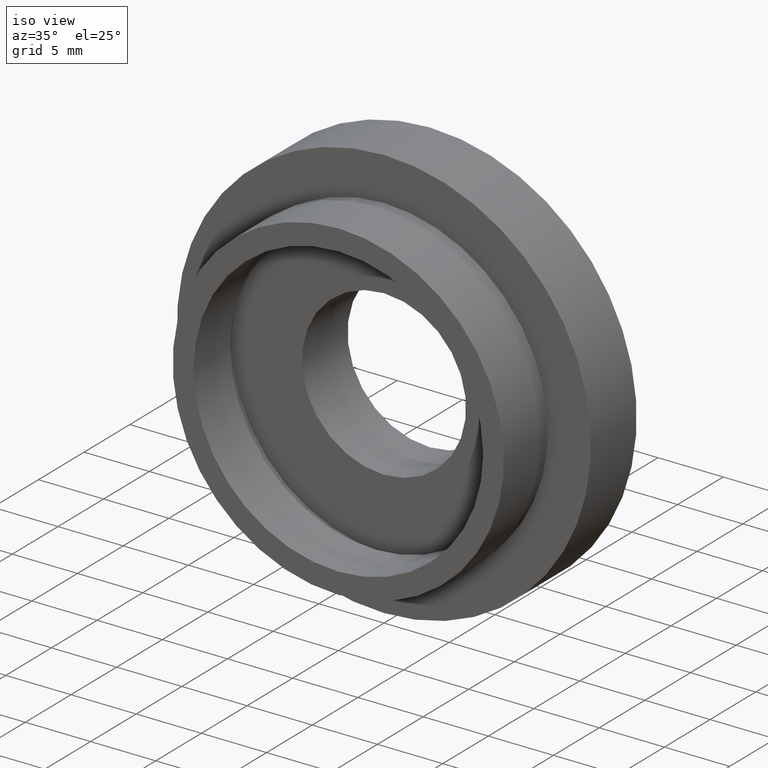
[diagram: clean part render]
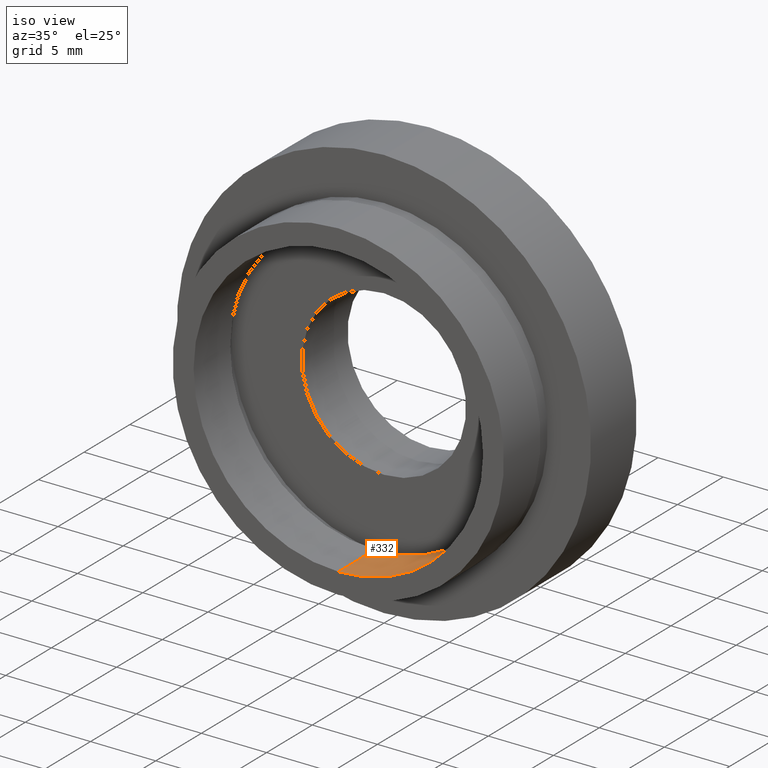
[diagram: same view with one face highlighted and labeled with its STEP entity id]
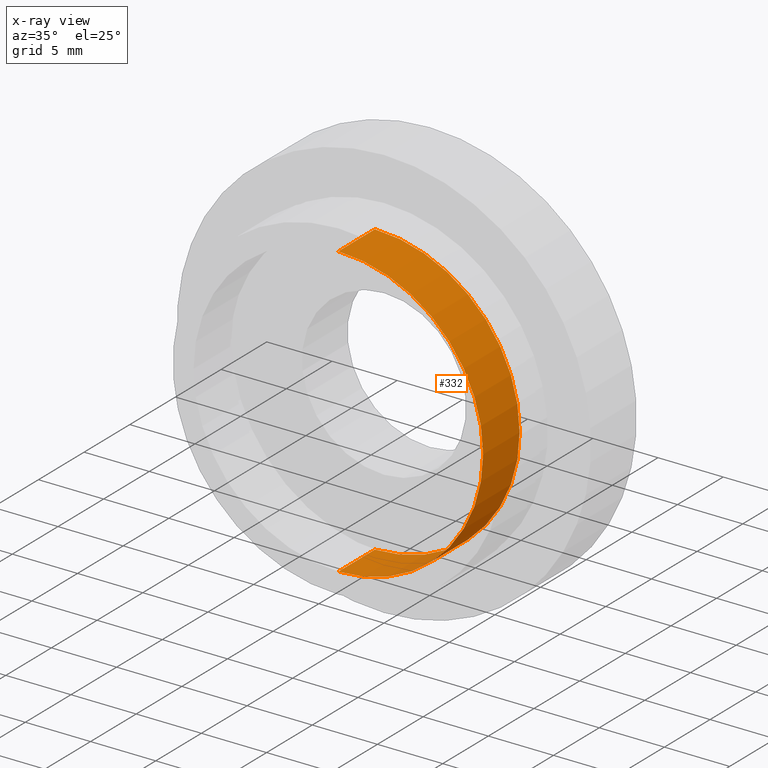
[diagram: x-ray of the same camera — body ghosted, the highlighted face saturated]
A machine part, iso view. The second image highlights one B-rep face of the part: STEP entity #332.
The next image is the same camera in x-ray: the body ghosted, the highlighted face saturated — about 0% of this face is hidden behind the body in this view.
In plain terms, the highlighted cylindrical surface (partial cylindrical patch) has radius 11.1 mm, axis along (-0, 1, -0).
Its self-contained STEP definition (entity closure, byte-faithful):
#12 = DIRECTION ( 'NONE',  ( 0.0000000000000000000, 0.0000000000000000000, 1.000000000000000000 ) ) ;
#38 = AXIS2_PLACEMENT_3D ( 'NONE', #342, #398, #12 ) ;
#53 = AXIS2_PLACEMENT_3D ( 'NONE', #105, #129, #58 ) ;
#58 = DIRECTION ( 'NONE',  ( 0.0000000000000000000, 0.0000000000000000000, 1.000000000000000000 ) ) ;
#73 = FACE_OUTER_BOUND ( 'NONE', #294, .T. ) ;
#77 = EDGE_CURVE ( 'NONE', #269, #475, #244, .T. ) ;
#105 = CARTESIAN_POINT ( 'NONE',  ( 0.0000000000000000000, 0.0000000000000000000, 0.0000000000000000000 ) ) ;
#113 = CIRCLE ( 'NONE', #125, 11.10000000000000100 ) ;
#125 = AXIS2_PLACEMENT_3D ( 'NONE', #256, #426, #341 ) ;
#126 = CYLINDRICAL_SURFACE ( 'NONE', #38, 11.10000000000000100 ) ;
#128 = CARTESIAN_POINT ( 'NONE',  ( 0.0000000000000000000, 4.000000000000000000, 11.10000000000000100 ) ) ;
#129 = DIRECTION ( 'NONE',  ( -0.0000000000000000000, 1.000000000000000000, -0.0000000000000000000 ) ) ;
#144 = CARTESIAN_POINT ( 'NONE',  ( 0.0000000000000000000, 13.74468085106383300, 11.10000000000000100 ) ) ;
#187 = ORIENTED_EDGE ( 'NONE', *, *, #502, .T. ) ;
#191 = CARTESIAN_POINT ( 'NONE',  ( 1.359357947053562400E-015, 4.000000000000000000, -11.10000000000000100 ) ) ;
#195 = LINE ( 'NONE', #300, #338 ) ;
#232 = ORIENTED_EDGE ( 'NONE', *, *, #77, .T. ) ;
#243 = EDGE_CURVE ( 'NONE', #269, #438, #289, .T. ) ;
#244 = LINE ( 'NONE', #144, #458 ) ;
#256 = CARTESIAN_POINT ( 'NONE',  ( 0.0000000000000000000, 4.000000000000000000, 0.0000000000000000000 ) ) ;
#261 = DIRECTION ( 'NONE',  ( -0.0000000000000000000, 1.000000000000000000, -0.0000000000000000000 ) ) ;
#269 = VERTEX_POINT ( 'NONE', #562 ) ;
#289 = CIRCLE ( 'NONE', #53, 11.10000000000000100 ) ;
#294 = EDGE_LOOP ( 'NONE', ( #536, #538, #232, #187 ) ) ;
#300 = CARTESIAN_POINT ( 'NONE',  ( 1.359357947053562400E-015, 13.74468085106383300, -11.10000000000000100 ) ) ;
#323 = EDGE_CURVE ( 'NONE', #438, #592, #195, .T. ) ;
#332 = ADVANCED_FACE ( 'NONE', ( #73 ), #126, .F. ) ;
#338 = VECTOR ( 'NONE', #495, 1000.000000000000000 ) ;
#341 = DIRECTION ( 'NONE',  ( 0.0000000000000000000, 0.0000000000000000000, 1.000000000000000000 ) ) ;
#342 = CARTESIAN_POINT ( 'NONE',  ( 0.0000000000000000000, 13.74468085106383300, 0.0000000000000000000 ) ) ;
#398 = DIRECTION ( 'NONE',  ( -0.0000000000000000000, 1.000000000000000000, -0.0000000000000000000 ) ) ;
#408 = CARTESIAN_POINT ( 'NONE',  ( 1.359357947053562400E-015, 0.0000000000000000000, -11.10000000000000100 ) ) ;
#426 = DIRECTION ( 'NONE',  ( -0.0000000000000000000, 1.000000000000000000, -0.0000000000000000000 ) ) ;
#438 = VERTEX_POINT ( 'NONE', #408 ) ;
#458 = VECTOR ( 'NONE', #261, 1000.000000000000000 ) ;
#475 = VERTEX_POINT ( 'NONE', #128 ) ;
#495 = DIRECTION ( 'NONE',  ( -0.0000000000000000000, 1.000000000000000000, -0.0000000000000000000 ) ) ;
#502 = EDGE_CURVE ( 'NONE', #475, #592, #113, .T. ) ;
#536 = ORIENTED_EDGE ( 'NONE', *, *, #323, .F. ) ;
#538 = ORIENTED_EDGE ( 'NONE', *, *, #243, .F. ) ;
#562 = CARTESIAN_POINT ( 'NONE',  ( 0.0000000000000000000, 0.0000000000000000000, 11.10000000000000100 ) ) ;
#592 = VERTEX_POINT ( 'NONE', #191 ) ;